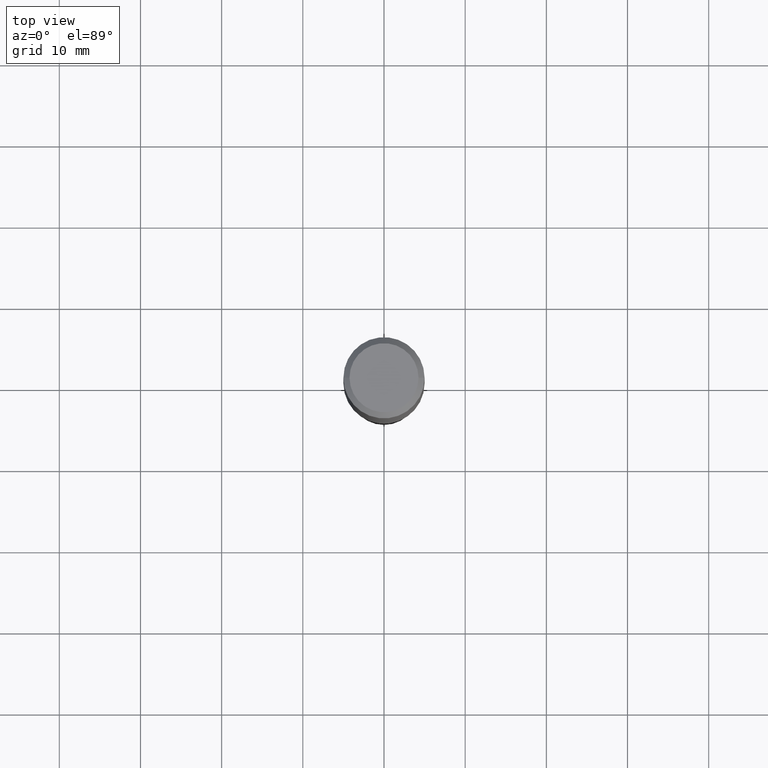
[diagram: clean part render]
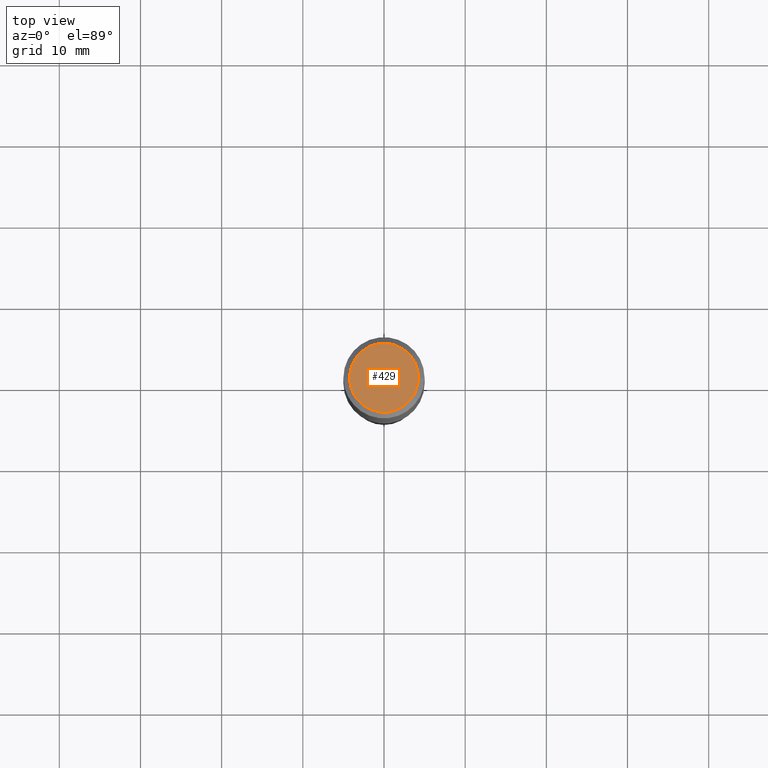
[diagram: same view with one face highlighted and labeled with its STEP entity id]
A machine part, top view. The second image highlights one B-rep face of the part: STEP entity #429.
In plain terms, the highlighted planar face has unit normal (0, -0, -1).
Its self-contained STEP definition (entity closure, byte-faithful):
#2 = DIRECTION ( 'NONE',  ( 1.000000000000000000, -6.982962677686267499E-15, 4.876294436782262290E-29 ) ) ;
#17 = DIRECTION ( 'NONE',  ( -2.445468806185136597E-29, 3.491481338843145583E-15, 1.000000000000000000 ) ) ;
#26 = DIRECTION ( 'NONE',  ( -1.000000000000000000, 6.982962677686265922E-15, -4.876176775795935793E-29 ) ) ;
#35 = VERTEX_POINT ( 'NONE', #476 ) ;
#55 = ORIENTED_EDGE ( 'NONE', *, *, #366, .T. ) ;
#67 = CARTESIAN_POINT ( 'NONE',  ( -1.001697619218021790E-46, 1.430158722866389718E-32, 4.096137381448108366E-18 ) ) ;
#72 = EDGE_CURVE ( 'NONE', #235, #35, #432, .T. ) ;
#97 = FACE_OUTER_BOUND ( 'NONE', #323, .T. ) ;
#154 = AXIS2_PLACEMENT_3D ( 'NONE', #67, #17, #170 ) ;
#170 = DIRECTION ( 'NONE',  ( 1.000000000000000000, -6.982962677686267499E-15, 4.876294436782262290E-29 ) ) ;
#173 = AXIS2_PLACEMENT_3D ( 'NONE', #370, #375, #2 ) ;
#174 = CARTESIAN_POINT ( 'NONE',  ( -5.008488096090108951E-47, 7.150793614331948590E-33, 2.048068690724054183E-18 ) ) ;
#235 = VERTEX_POINT ( 'NONE', #360 ) ;
#323 = EDGE_LOOP ( 'NONE', ( #55, #374 ) ) ;
#357 = PLANE ( 'NONE',  #452 ) ;
#360 = CARTESIAN_POINT ( 'NONE',  ( 0.1673224999999999851, -1.300749711163072594E-15, 4.096137381456741925E-18 ) ) ;
#366 = EDGE_CURVE ( 'NONE', #35, #235, #367, .T. ) ;
#367 = CIRCLE ( 'NONE', #154, 0.1673224999999999851 ) ;
#370 = CARTESIAN_POINT ( 'NONE',  ( -1.001697619218021790E-46, 1.430158722866389718E-32, 4.096137381448108366E-18 ) ) ;
#374 = ORIENTED_EDGE ( 'NONE', *, *, #72, .T. ) ;
#375 = DIRECTION ( 'NONE',  ( -2.445468806185136597E-29, 3.491481338843145583E-15, 1.000000000000000000 ) ) ;
#429 = ADVANCED_FACE ( 'NONE', ( #97 ), #357, .F. ) ;
#432 = CIRCLE ( 'NONE', #173, 0.1673224999999999851 ) ;
#452 = AXIS2_PLACEMENT_3D ( 'NONE', #174, #467, #26 ) ;
#467 = DIRECTION ( 'NONE',  ( 2.438088387897960049E-29, -3.491481338843145188E-15, -1.000000000000000000 ) ) ;
#476 = CARTESIAN_POINT ( 'NONE',  ( -0.1673224999999999851, 1.219954130253505460E-15, 4.096137381439757534E-18 ) ) ;